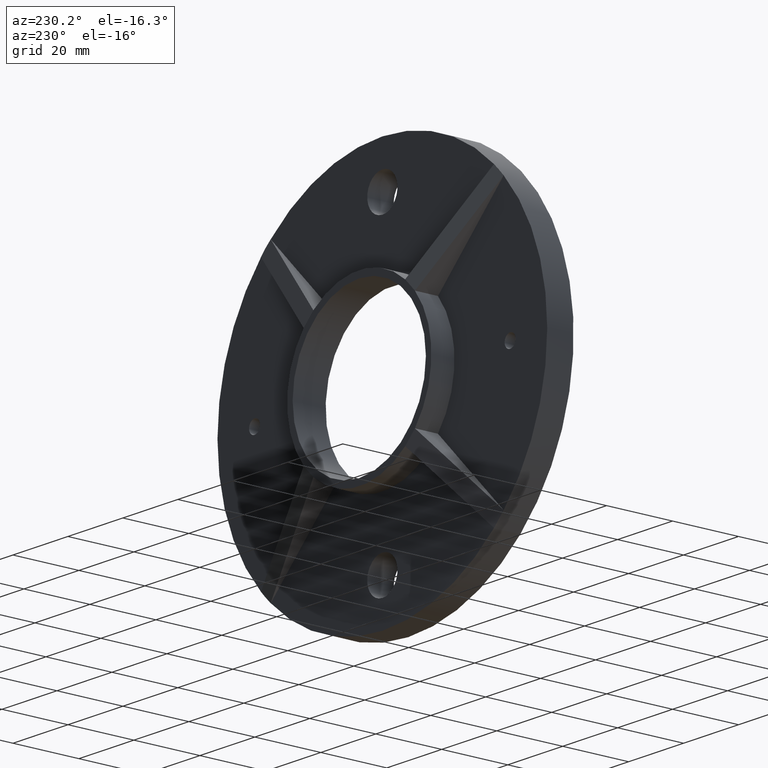
[diagram: clean part render]
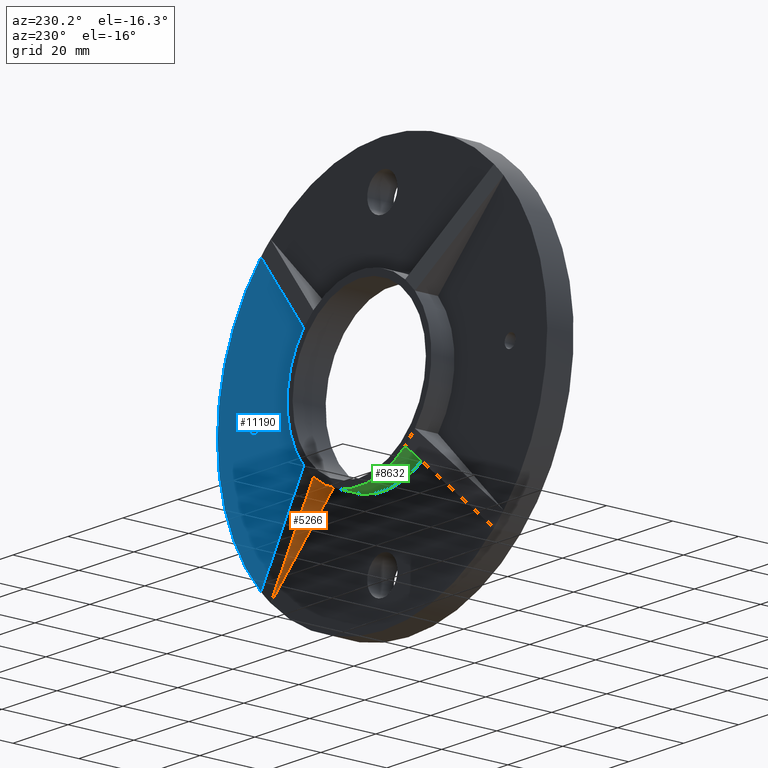
[diagram: same view with three faces highlighted in distinct colors, each labeled with its STEP entity id]
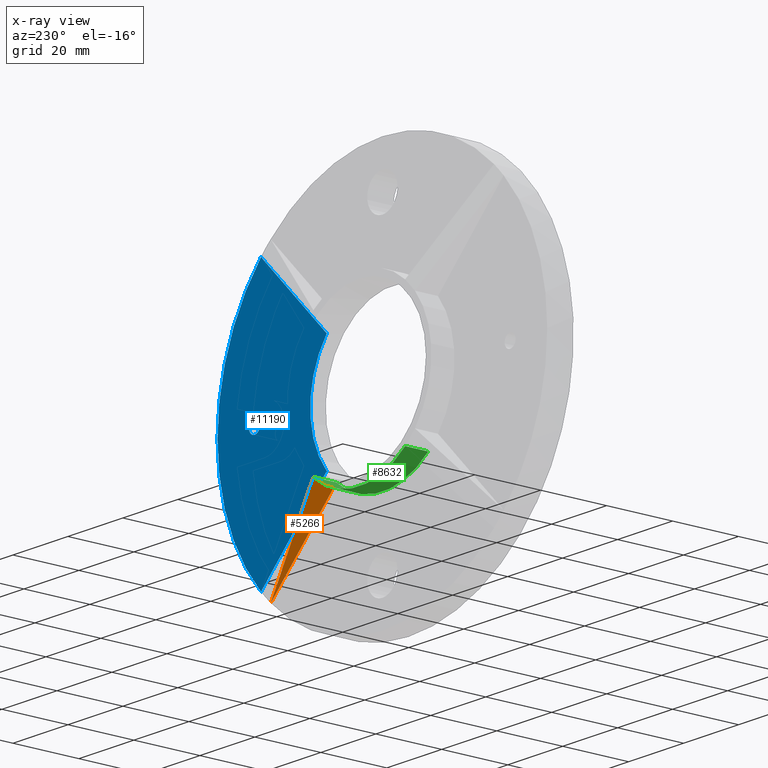
[diagram: x-ray of the same camera — body ghosted, the three highlighted faces saturated]
A machine part, auxiliary view with three faces highlighted in distinct colors.
The next image is the same camera in x-ray (body ghosted, the three faces saturated) — at least one of them is partly hidden behind the body in this view.
Their STEP definitions:

[orange] entity #5266 — the highlighted planar face has unit normal (0.7071, -0, 0.7071).
#48 = VECTOR ( 'NONE', #6393, 999.9999999999998863 ) ;
#108 = PLANE ( 'NONE',  #6575 ) ;
#585 = EDGE_CURVE ( 'NONE', #6663, #3557, #7707, .T. ) ;
#669 = VECTOR ( 'NONE', #8784, 1000.000000000000000 ) ;
#941 = VERTEX_POINT ( 'NONE', #6834 ) ;
#1264 = VECTOR ( 'NONE', #4157, 1000.000000000000000 ) ;
#1859 = DIRECTION ( 'NONE',  ( 0.7071067811865486830, 0.000000000000000000, -0.7071067811865464625 ) ) ;
#2436 = EDGE_CURVE ( 'NONE', #6663, #941, #2651, .T. ) ;
#2549 = CARTESIAN_POINT ( 'NONE',  ( 40.62179544156660427, 8.000000000000000000, -44.15732934749922833 ) ) ;
#2651 = LINE ( 'NONE', #8622, #669 ) ;
#3557 = VERTEX_POINT ( 'NONE', #2549 ) ;
#4157 = DIRECTION ( 'NONE',  ( 0.6924281307454287493, -0.2026982178135410817, -0.6924281307454266399 ) ) ;
#4483 = LINE ( 'NONE', #7348, #48 ) ;
#5266 = ADVANCED_FACE ( 'NONE', ( #5396 ), #108, .F. ) ;
#5396 = FACE_OUTER_BOUND ( 'NONE', #7087, .T. ) ;
#5979 = ORIENTED_EDGE ( 'NONE', *, *, #585, .T. ) ;
#6393 = DIRECTION ( 'NONE',  ( -0.7071067811865486830, -0.000000000000000000, 0.7071067811865464625 ) ) ;
#6575 = AXIS2_PLACEMENT_3D ( 'NONE', #9194, #10036, #1859 ) ;
#6663 = VERTEX_POINT ( 'NONE', #9151 ) ;
#6834 = CARTESIAN_POINT ( 'NONE',  ( 16.70941492090175728, 8.000000000000000000, -20.24494882683445240 ) ) ;
#7087 = EDGE_LOOP ( 'NONE', ( #11676, #5979, #10732 ) ) ;
#7348 = CARTESIAN_POINT ( 'NONE',  ( 16.70941492090176084, 8.000000000000000000, -20.24494882683444885 ) ) ;
#7707 = LINE ( 'NONE', #8748, #1264 ) ;
#8622 = CARTESIAN_POINT ( 'NONE',  ( 16.70941492090175728, 53.81721284095039692, -20.24494882683445240 ) ) ;
#8748 = CARTESIAN_POINT ( 'NONE',  ( 11.26126584575380996, 16.59486603573734342, -14.79679975168651573 ) ) ;
#8784 = DIRECTION ( 'NONE',  ( -0.000000000000000000, -1.000000000000000000, -0.000000000000000000 ) ) ;
#9151 = CARTESIAN_POINT ( 'NONE',  ( 16.70941492090176439, 15.00000000000000000, -20.24494882683443819 ) ) ;
#9194 = CARTESIAN_POINT ( 'NONE',  ( 16.70941492090176084, 53.81721284095039692, -20.24494882683444885 ) ) ;
#10036 = DIRECTION ( 'NONE',  ( 0.7071067811865464625, -0.000000000000000000, 0.7071067811865486830 ) ) ;
#10732 = ORIENTED_EDGE ( 'NONE', *, *, #11431, .T. ) ;
#11431 = EDGE_CURVE ( 'NONE', #3557, #941, #4483, .T. ) ;
#11676 = ORIENTED_EDGE ( 'NONE', *, *, #2436, .F. ) ;

[blue] entity #11190 — the highlighted planar face has unit normal (0, 1, 0).
#97 = DIRECTION ( 'NONE',  ( -0.7071067811865463515, -0.000000000000000000, -0.7071067811865487940 ) ) ;
#140 = CARTESIAN_POINT ( 'NONE',  ( 20.24494882683444530, 8.000000000000000000, 16.70941492090176439 ) ) ;
#339 = CARTESIAN_POINT ( 'NONE',  ( 46.50000000000000000, 8.000000000000000000, 0.000000000000000000 ) ) ;
#402 = CARTESIAN_POINT ( 'NONE',  ( 0.000000000000000000, 8.000000000000000000, 0.000000000000000000 ) ) ;
#514 = DIRECTION ( 'NONE',  ( 0.000000000000000000, 0.000000000000000000, 1.000000000000000000 ) ) ;
#640 = ORIENTED_EDGE ( 'NONE', *, *, #4178, .F. ) ;
#648 = PLANE ( 'NONE',  #9981 ) ;
#719 = ORIENTED_EDGE ( 'NONE', *, *, #992, .F. ) ;
#852 = LINE ( 'NONE', #140, #8017 ) ;
#992 = EDGE_CURVE ( 'NONE', #3335, #3335, #1821, .T. ) ;
#1168 = DIRECTION ( 'NONE',  ( 0.000000000000000000, 1.000000000000000000, 0.000000000000000000 ) ) ;
#1273 = CARTESIAN_POINT ( 'NONE',  ( 20.24494882683449148, 8.000000000000000000, -16.70941492090170755 ) ) ;
#1420 = CARTESIAN_POINT ( 'NONE',  ( 0.000000000000000000, 8.000000000000000000, 0.000000000000000000 ) ) ;
#1685 = VECTOR ( 'NONE', #8871, 1000.000000000000000 ) ;
#1821 = CIRCLE ( 'NONE', #5836, 2.000000000000003109 ) ;
#2245 = CARTESIAN_POINT ( 'NONE',  ( 44.15732934749922123, 8.000000000000000000, 40.62179544156661848 ) ) ;
#2408 = ORIENTED_EDGE ( 'NONE', *, *, #2782, .F. ) ;
#2452 = CARTESIAN_POINT ( 'NONE',  ( 20.24494882683449148, 8.000000000000000000, -16.70941492090170755 ) ) ;
#2607 = AXIS2_PLACEMENT_3D ( 'NONE', #2847, #1168, #8493 ) ;
#2782 = EDGE_CURVE ( 'NONE', #9022, #5116, #852, .T. ) ;
#2847 = CARTESIAN_POINT ( 'NONE',  ( 0.000000000000000000, 8.000000000000000000, 0.000000000000000000 ) ) ;
#3123 = EDGE_LOOP ( 'NONE', ( #719 ) ) ;
#3142 = DIRECTION ( 'NONE',  ( 0.000000000000000000, 1.000000000000000000, -0.000000000000000000 ) ) ;
#3335 = VERTEX_POINT ( 'NONE', #4176 ) ;
#3481 = FACE_OUTER_BOUND ( 'NONE', #7059, .T. ) ;
#3898 = FACE_BOUND ( 'NONE', #3123, .T. ) ;
#4119 = LINE ( 'NONE', #2452, #1685 ) ;
#4176 = CARTESIAN_POINT ( 'NONE',  ( 46.50000000000000000, 8.000000000000000000, -2.000000000000003109 ) ) ;
#4178 = EDGE_CURVE ( 'NONE', #5430, #11119, #4119, .T. ) ;
#5116 = VERTEX_POINT ( 'NONE', #11796 ) ;
#5147 = ORIENTED_EDGE ( 'NONE', *, *, #10943, .F. ) ;
#5254 = DIRECTION ( 'NONE',  ( 0.000000000000000000, 1.000000000000000000, 0.000000000000000000 ) ) ;
#5430 = VERTEX_POINT ( 'NONE', #1273 ) ;
#5685 = AXIS2_PLACEMENT_3D ( 'NONE', #402, #10565, #514 ) ;
#5836 = AXIS2_PLACEMENT_3D ( 'NONE', #339, #3142, #11345 ) ;
#7028 = CARTESIAN_POINT ( 'NONE',  ( 44.15732934749922833, 8.000000000000000000, -40.62179544156661848 ) ) ;
#7059 = EDGE_LOOP ( 'NONE', ( #9351, #640, #5147, #2408 ) ) ;
#8017 = VECTOR ( 'NONE', #97, 999.9999999999998863 ) ;
#8493 = DIRECTION ( 'NONE',  ( 0.000000000000000000, 0.000000000000000000, 1.000000000000000000 ) ) ;
#8871 = DIRECTION ( 'NONE',  ( 0.7071067811865485719, 0.000000000000000000, -0.7071067811865465735 ) ) ;
#8905 = DIRECTION ( 'NONE',  ( 0.000000000000000000, -0.000000000000000000, 1.000000000000000000 ) ) ;
#9022 = VERTEX_POINT ( 'NONE', #2245 ) ;
#9351 = ORIENTED_EDGE ( 'NONE', *, *, #11568, .T. ) ;
#9799 = CIRCLE ( 'NONE', #2607, 26.25000000000000355 ) ;
#9981 = AXIS2_PLACEMENT_3D ( 'NONE', #1420, #5254, #8905 ) ;
#10565 = DIRECTION ( 'NONE',  ( 0.000000000000000000, 1.000000000000000000, 0.000000000000000000 ) ) ;
#10911 = CIRCLE ( 'NONE', #5685, 60.00000000000000000 ) ;
#10943 = EDGE_CURVE ( 'NONE', #5116, #5430, #9799, .T. ) ;
#11119 = VERTEX_POINT ( 'NONE', #7028 ) ;
#11190 = ADVANCED_FACE ( 'NONE', ( #3898, #3481 ), #648, .T. ) ;
#11345 = DIRECTION ( 'NONE',  ( 0.000000000000000000, 0.000000000000000000, -1.000000000000000000 ) ) ;
#11568 = EDGE_CURVE ( 'NONE', #9022, #11119, #10911, .T. ) ;
#11796 = CARTESIAN_POINT ( 'NONE',  ( 20.24494882683444530, 8.000000000000000000, 16.70941492090176439 ) ) ;

[green] entity #8632 — the highlighted cylindrical surface (partial cylindrical patch) has radius 26.25 mm, axis along (-0, -1, -0).
#157 = DIRECTION ( 'NONE',  ( -0.000000000000000000, -1.000000000000000000, -0.000000000000000000 ) ) ;
#252 = DIRECTION ( 'NONE',  ( -0.000000000000000000, -1.000000000000000000, -0.000000000000000000 ) ) ;
#669 = VECTOR ( 'NONE', #8784, 1000.000000000000000 ) ;
#941 = VERTEX_POINT ( 'NONE', #6834 ) ;
#1183 = ORIENTED_EDGE ( 'NONE', *, *, #10219, .F. ) ;
#1948 = CARTESIAN_POINT ( 'NONE',  ( -16.70941492090170755, 8.000000000000000000, -20.24494882683449148 ) ) ;
#2175 = DIRECTION ( 'NONE',  ( 0.000000000000000000, 1.000000000000000000, 0.000000000000000000 ) ) ;
#2436 = EDGE_CURVE ( 'NONE', #6663, #941, #2651, .T. ) ;
#2651 = LINE ( 'NONE', #8622, #669 ) ;
#2662 = DIRECTION ( 'NONE',  ( 0.000000000000000000, 1.000000000000000000, 0.000000000000000000 ) ) ;
#2767 = EDGE_LOOP ( 'NONE', ( #5738, #6274, #1183, #9401 ) ) ;
#3143 = DIRECTION ( 'NONE',  ( 0.000000000000000000, 0.000000000000000000, 1.000000000000000000 ) ) ;
#3385 = FACE_OUTER_BOUND ( 'NONE', #2767, .T. ) ;
#4170 = CARTESIAN_POINT ( 'NONE',  ( -16.70941492090170755, 15.00000000000000000, -20.24494882683449148 ) ) ;
#4439 = VERTEX_POINT ( 'NONE', #4170 ) ;
#5209 = CIRCLE ( 'NONE', #9466, 26.25000000000000355 ) ;
#5399 = CYLINDRICAL_SURFACE ( 'NONE', #11271, 26.25000000000000355 ) ;
#5521 = DIRECTION ( 'NONE',  ( 0.000000000000000000, 0.000000000000000000, -1.000000000000000000 ) ) ;
#5738 = ORIENTED_EDGE ( 'NONE', *, *, #2436, .T. ) ;
#6274 = ORIENTED_EDGE ( 'NONE', *, *, #11771, .T. ) ;
#6663 = VERTEX_POINT ( 'NONE', #9151 ) ;
#6834 = CARTESIAN_POINT ( 'NONE',  ( 16.70941492090175728, 8.000000000000000000, -20.24494882683445240 ) ) ;
#7528 = CARTESIAN_POINT ( 'NONE',  ( -16.70941492090170755, 53.81721284095039692, -20.24494882683449148 ) ) ;
#7661 = LINE ( 'NONE', #7528, #8826 ) ;
#8057 = VERTEX_POINT ( 'NONE', #1948 ) ;
#8410 = EDGE_CURVE ( 'NONE', #6663, #4439, #9409, .T. ) ;
#8622 = CARTESIAN_POINT ( 'NONE',  ( 16.70941492090175728, 53.81721284095039692, -20.24494882683445240 ) ) ;
#8632 = ADVANCED_FACE ( 'NONE', ( #3385 ), #5399, .T. ) ;
#8784 = DIRECTION ( 'NONE',  ( -0.000000000000000000, -1.000000000000000000, -0.000000000000000000 ) ) ;
#8826 = VECTOR ( 'NONE', #252, 1000.000000000000000 ) ;
#9151 = CARTESIAN_POINT ( 'NONE',  ( 16.70941492090176439, 15.00000000000000000, -20.24494882683443819 ) ) ;
#9401 = ORIENTED_EDGE ( 'NONE', *, *, #8410, .F. ) ;
#9409 = CIRCLE ( 'NONE', #10177, 26.25000000000000355 ) ;
#9466 = AXIS2_PLACEMENT_3D ( 'NONE', #10865, #2662, #11789 ) ;
#10177 = AXIS2_PLACEMENT_3D ( 'NONE', #10472, #2175, #3143 ) ;
#10219 = EDGE_CURVE ( 'NONE', #4439, #8057, #7661, .T. ) ;
#10472 = CARTESIAN_POINT ( 'NONE',  ( 0.000000000000000000, 15.00000000000000000, 0.000000000000000000 ) ) ;
#10865 = CARTESIAN_POINT ( 'NONE',  ( 0.000000000000000000, 8.000000000000000000, 0.000000000000000000 ) ) ;
#11069 = CARTESIAN_POINT ( 'NONE',  ( 0.000000000000000000, 15.00000000000000000, 0.000000000000000000 ) ) ;
#11271 = AXIS2_PLACEMENT_3D ( 'NONE', #11069, #157, #5521 ) ;
#11771 = EDGE_CURVE ( 'NONE', #941, #8057, #5209, .T. ) ;
#11789 = DIRECTION ( 'NONE',  ( 0.000000000000000000, 0.000000000000000000, 1.000000000000000000 ) ) ;